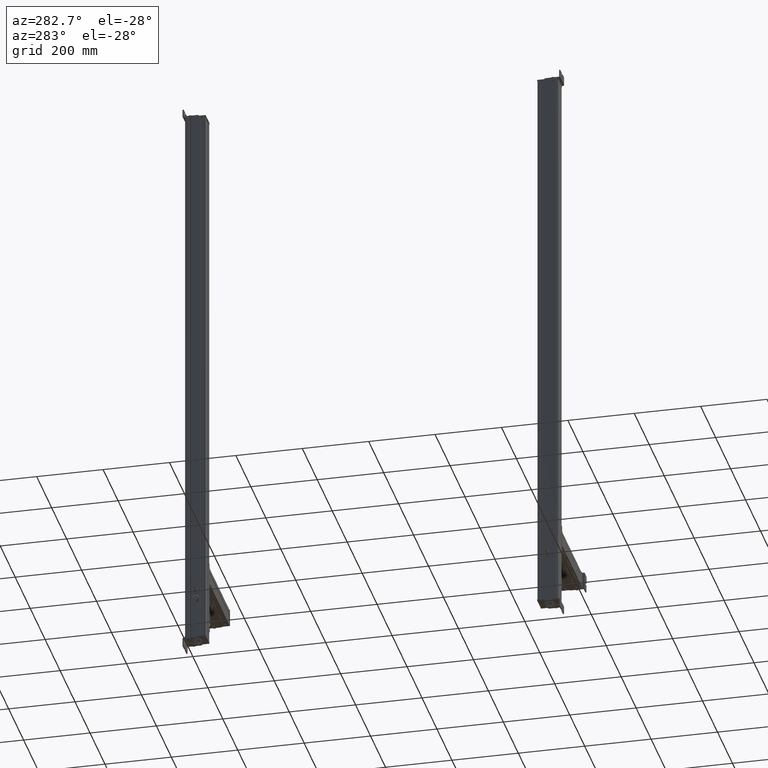
[diagram: clean part render]
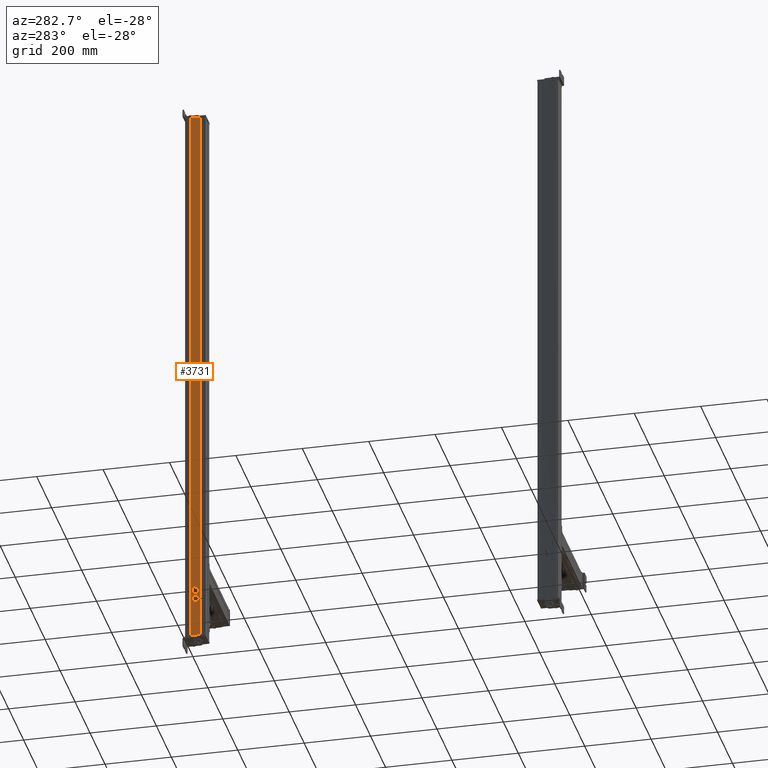
[diagram: same view with one face highlighted and labeled with its STEP entity id]
A machine part, auxiliary view. The second image highlights one B-rep face of the part: STEP entity #3731.
In plain terms, the highlighted planar face has unit normal (-1, 0, 0).
Its self-contained STEP definition (entity closure, byte-faithful):
#2992=CARTESIAN_POINT('Axis2P3D Location',(666.195883662,171.710394004,0.)) ;
#3684=CARTESIAN_POINT('Vertex',(666.195883661,138.767790275,0.)) ;
#3687=CARTESIAN_POINT('Line Origine',(666.195883661,138.767790275,861.)) ;
#3691=CARTESIAN_POINT('Vertex',(666.195883661,138.767790275,1722.)) ;
#3706=CARTESIAN_POINT('Line Origine',(666.195883662,152.38909214,0.)) ;
#3710=CARTESIAN_POINT('Vertex',(666.195883662,166.010394005,0.)) ;
#3713=CARTESIAN_POINT('Line Origine',(666.195883662,166.010394005,861.)) ;
#3717=CARTESIAN_POINT('Vertex',(666.195883662,166.010394005,1722.)) ;
#3720=CARTESIAN_POINT('Line Origine',(666.195883662,152.38909214,1722.)) ;
#2993=DIRECTION('Axis2P3D Direction',(1.,0.,0.)) ;
#2994=DIRECTION('Axis2P3D XDirection',(0.,1.,0.)) ;
#3688=DIRECTION('Vector Direction',(0.,0.,1.)) ;
#3707=DIRECTION('Vector Direction',(0.,1.,0.)) ;
#3714=DIRECTION('Vector Direction',(0.,0.,1.)) ;
#3721=DIRECTION('Vector Direction',(0.,1.,0.)) ;
#2995=AXIS2_PLACEMENT_3D('Plane Axis2P3D',#2992,#2993,#2994) ;
#3726=ORIENTED_EDGE('',*,*,#3693,.F.) ;
#3727=ORIENTED_EDGE('',*,*,#3712,.T.) ;
#3728=ORIENTED_EDGE('',*,*,#3719,.T.) ;
#3729=ORIENTED_EDGE('',*,*,#3724,.F.) ;
#3689=VECTOR('Line Direction',#3688,1.) ;
#3708=VECTOR('Line Direction',#3707,1.) ;
#3715=VECTOR('Line Direction',#3714,1.) ;
#3722=VECTOR('Line Direction',#3721,1.) ;
#3731=ADVANCED_FACE('Body.2',(#3730),#2996,.T.) ;
#3693=EDGE_CURVE('',#3685,#3692,#3690,.T.) ;
#3712=EDGE_CURVE('',#3685,#3711,#3709,.T.) ;
#3719=EDGE_CURVE('',#3711,#3718,#3716,.T.) ;
#3724=EDGE_CURVE('',#3692,#3718,#3723,.T.) ;
#3725=EDGE_LOOP('',(#3726,#3727,#3728,#3729)) ;
#3730=FACE_OUTER_BOUND('',#3725,.T.) ;
#3690=LINE('Line',#3687,#3689) ;
#3709=LINE('Line',#3706,#3708) ;
#3716=LINE('Line',#3713,#3715) ;
#3723=LINE('Line',#3720,#3722) ;
#2996=PLANE('Plane',#2995) ;
#3685=VERTEX_POINT('',#3684) ;
#3692=VERTEX_POINT('',#3691) ;
#3711=VERTEX_POINT('',#3710) ;
#3718=VERTEX_POINT('',#3717) ;